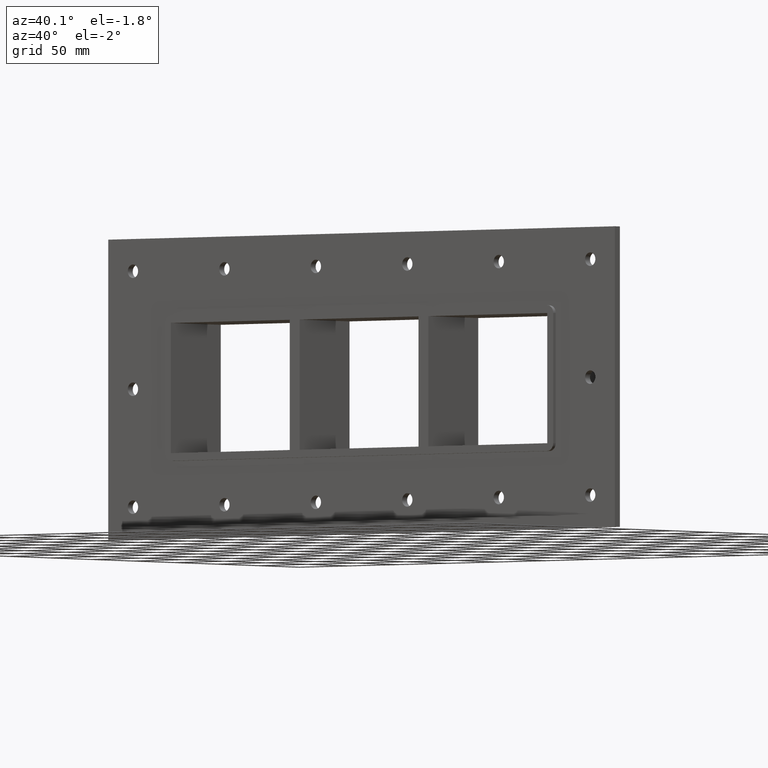
[diagram: clean part render]
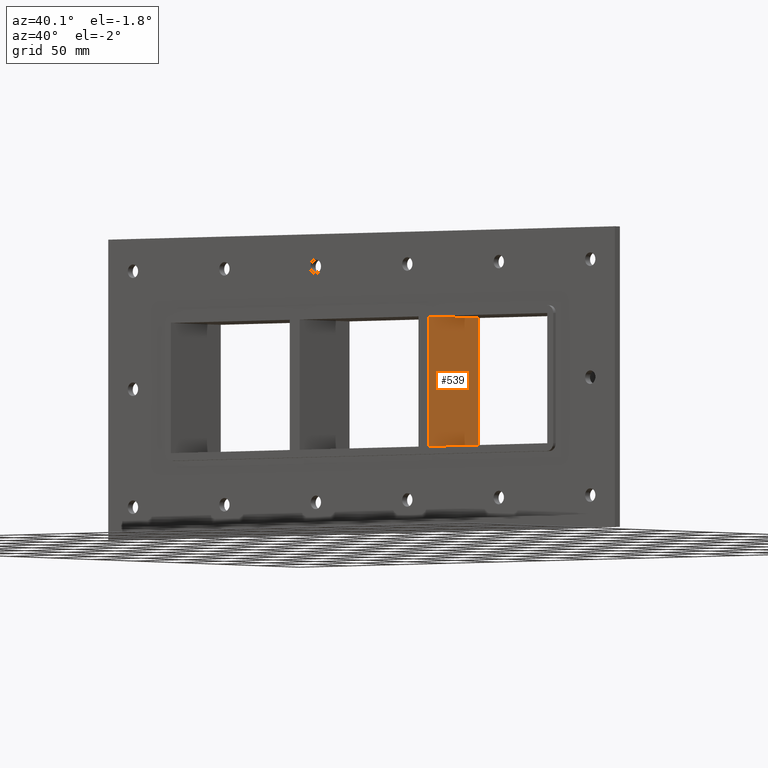
[diagram: same view with one face highlighted and labeled with its STEP entity id]
A machine part, auxiliary view. The second image highlights one B-rep face of the part: STEP entity #539.
In plain terms, the highlighted planar face has unit normal (1, 0, 0).
Its self-contained STEP definition (entity closure, byte-faithful):
#500=CARTESIAN_POINT('',(70.250000000003638,-3.0,50.499999999999972));
#501=DIRECTION('',(1.0,0.0,0.0));
#502=DIRECTION('',(0.0,0.0,-1.0));
#503=AXIS2_PLACEMENT_3D('',#500,#501,#502);
#504=PLANE('',#503);
#505=CARTESIAN_POINT('',(70.250000000003638,-3.0,50.499999999999972));
#506=VERTEX_POINT('',#505);
#507=CARTESIAN_POINT('',(70.250000000003638,-3.0,-50.499999999980801));
#508=VERTEX_POINT('',#507);
#509=CARTESIAN_POINT('',(70.250000000003638,-3.0,50.499999999999972));
#510=DIRECTION('',(0.0,0.0,-1.0));
#511=VECTOR('',#510,100.99999999998077);
#512=LINE('',#509,#511);
#513=EDGE_CURVE('',#506,#508,#512,.T.);
#514=ORIENTED_EDGE('',*,*,#513,.T.);
#515=CARTESIAN_POINT('',(70.250000000003638,57.0,-50.499999999980801));
#516=VERTEX_POINT('',#515);
#517=CARTESIAN_POINT('',(70.250000000003638,57.000000000000007,-50.499999999999972));
#518=DIRECTION('',(0.0,-1.0,0.0));
#519=VECTOR('',#518,60.000000000000007);
#520=LINE('',#517,#519);
#521=EDGE_CURVE('',#516,#508,#520,.T.);
#522=ORIENTED_EDGE('',*,*,#521,.F.);
#523=CARTESIAN_POINT('',(70.250000000003638,57.0,50.499999999999972));
#524=VERTEX_POINT('',#523);
#525=CARTESIAN_POINT('',(70.250000000003638,57.0,50.499999999999972));
#526=DIRECTION('',(0.0,0.0,-1.0));
#527=VECTOR('',#526,100.99999999998077);
#528=LINE('',#525,#527);
#529=EDGE_CURVE('',#524,#516,#528,.T.);
#530=ORIENTED_EDGE('',*,*,#529,.F.);
#531=CARTESIAN_POINT('',(70.250000000003638,-3.0,50.499999999999972));
#532=DIRECTION('',(0.0,1.0,0.0));
#533=VECTOR('',#532,60.000000000000007);
#534=LINE('',#531,#533);
#535=EDGE_CURVE('',#506,#524,#534,.T.);
#536=ORIENTED_EDGE('',*,*,#535,.F.);
#537=EDGE_LOOP('',(#514,#522,#530,#536));
#538=FACE_OUTER_BOUND('',#537,.T.);
#539=ADVANCED_FACE('',(#538),#504,.T.);